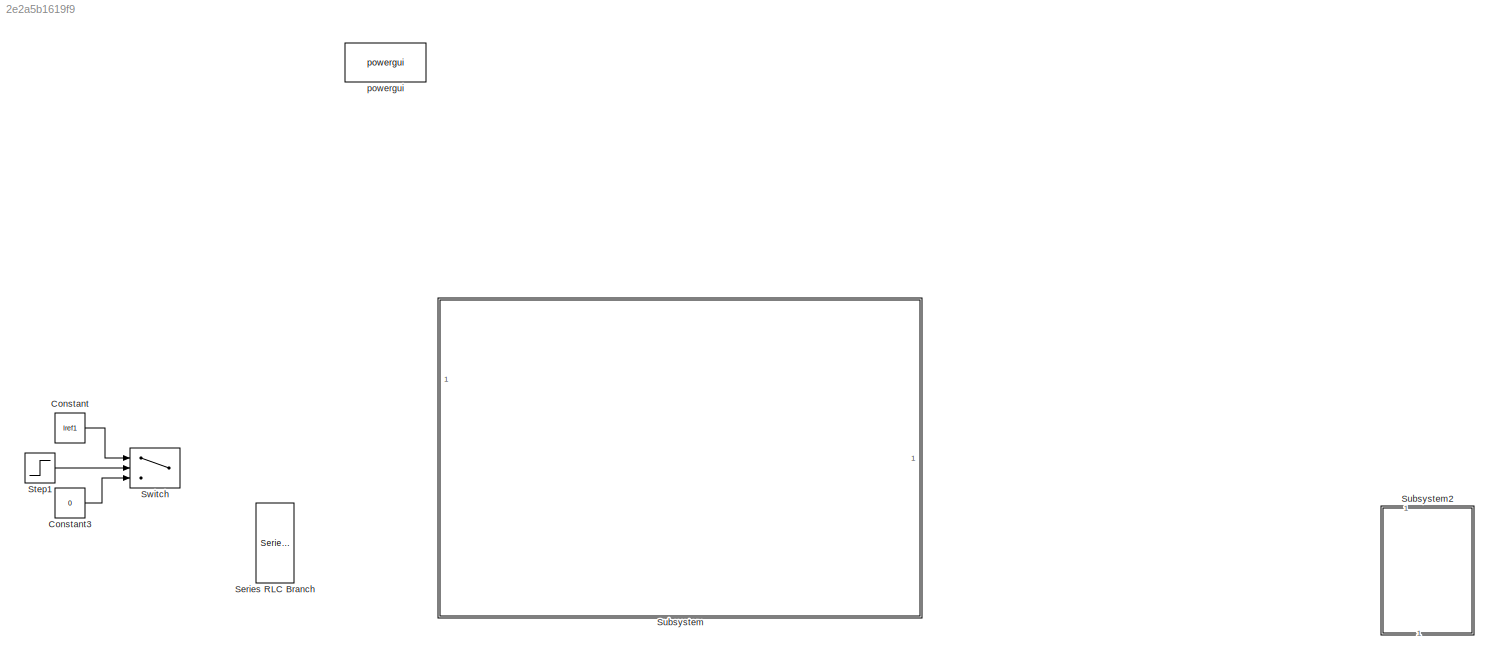
MODEL slx_2e2a5b1619f9
KIND model
CONFIG AbsTol = auto
CONFIG EnableMultiTasking = off
CONFIG FixedStep = auto
CONFIG MaxStep = auto
CONFIG MinStep = auto
CONFIG RelTol = 1e-3
CONFIG SampleTimeConstraint = Unconstrained
CONFIG SolverName = VariableStepAuto
CONFIG StartTime = 0.0
CONFIG StopTime = 40
BLOCK [Constant] Constant
  Value = Iref1
BLOCK [Constant] Constant3
  Value = 0
BLOCK [Reference] Series RLC Branch  REF=spsSeriesRLCBranchLib/Series RLC Branch
  LibrarySourceBlock = sps_lib/Passives/Series RLC Branch
  NameLocation = left
  SourceBlock = spsSeriesRLCBranchLib/Series RLC Branch
  SourceType = Series RLC Branch
BLOCK [Step] Step1
  SampleTime = 0
  Time = 21
  VectorParams1D = off
  ZeroCross = off
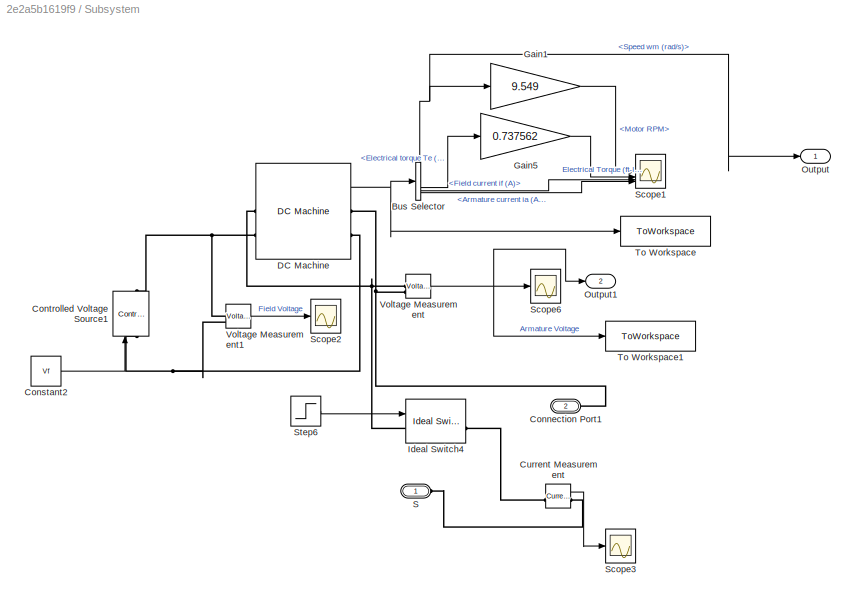
BLOCK [SubSystem] Subsystem
BLOCK [BusSelector] Subsystem/Bus Selector
  OutputSignals = Speed wm (rad/s),Electrical torque Te (n m),Field current if (A),Armature current ia (A)
BLOCK [PMIOPort] Subsystem/Connection Port1
  Port = 2
  Side = Left
BLOCK [Constant] Subsystem/Constant2
  Value = Vf
BLOCK [Reference] Subsystem/Controlled Voltage Source1  REF=spsControlledVoltageSourceLib/Controlled Voltage Source
  LibrarySourceBlock = sps_lib/Sources/Controlled Voltage Source
  NameLocation = right
  SourceBlock = spsControlledVoltageSourceLib/Controlled Voltage Source
  SourceType = Controlled Voltage Source
BLOCK [Reference] Subsystem/Current Measurement  REF=spsCurrentMeasurementLib/Current Measurement
  LibrarySourceBlock = sps_lib/Sensors and Measurements/Current Measurement
  SourceBlock = spsCurrentMeasurementLib/Current Measurement
  SourceType = Current Measurement
  UserDataPersistent = on
BLOCK [Reference] Subsystem/DC Machine  REF=spsDCMachineLib/DC Machine
  LibrarySourceBlock = sps_lib/Electrical Machines/DC Machine
  SourceBlock = spsDCMachineLib/DC Machine
  SourceType = DC machine
BLOCK [Gain] Subsystem/Gain1
  Gain = 9.549
BLOCK [Gain] Subsystem/Gain5
  Gain = 0.737562
BLOCK [Reference] Subsystem/Ideal Switch4  REF=spsIdealSwitchLib/Ideal Switch
  LibrarySourceBlock = sps_lib/Power Electronics/Ideal Switch
  SourceBlock = spsIdealSwitchLib/Ideal Switch
  SourceType = Ideal Switch
BLOCK [Outport] Subsystem/Output
BLOCK [Outport] Subsystem/Output1
  Port = 2
BLOCK [PMIOPort] Subsystem/S
  Side = Left
BLOCK [Scope] Subsystem/Scope1
  Floating = off
  NumInputPorts = 4
  ScopeSpecificationString = Simulink.scopes.TimeScopeBlockCfg('CurrentConfiguration', extmgr.ConfigurationSet(extmgr.Configuration('Core','General UI',true,'FigureColor',[0 0 0]),extmgr.Configuration('Core','Source UI',true),extmgr.Configuration('Sources','WiredSimulink',true,'DataLoggingVariableName','ScopeData1'),extmgr.Configuration('Visuals','Time Domain',true,'SerializedDisplays',{struct('MinYLimReal','-335.90145','MaxY...<+3527ch>
BLOCK [Scope] Subsystem/Scope2
  Floating = off
  NumInputPorts = 1
  ScopeSpecificationString = Simulink.scopes.TimeScopeBlockCfg('CurrentConfiguration', extmgr.ConfigurationSet(extmgr.Configuration('Core','General UI',true,'FigureColor',[0 0 0]),extmgr.Configuration('Core','Source UI',true),extmgr.Configuration('Sources','WiredSimulink',true,'SampleTime','0.01','DataLoggingVariableName','ScopeData2'),extmgr.Configuration('Visuals','Time Domain',true,'SerializedDisplays',{struct('MinYLimReal...<+1599ch>
BLOCK [Scope] Subsystem/Scope3
  Floating = off
  NumInputPorts = 1
  ScopeSpecificationString = Simulink.scopes.TimeScopeBlockCfg('CurrentConfiguration', extmgr.ConfigurationSet(extmgr.Configuration('Core','General UI',true,'FigureColor',[0 0 0]),extmgr.Configuration('Core','Source UI',true),extmgr.Configuration('Sources','WiredSimulink',true,'SampleTime','0.01','DataLoggingVariableName','ScopeData3'),extmgr.Configuration('Visuals','Time Domain',true,'SerializedDisplays',{struct('MinYLimReal...<+1630ch>
BLOCK [Scope] Subsystem/Scope6
  Floating = off
  NumInputPorts = 1
  ScopeSpecificationString = Simulink.scopes.TimeScopeBlockCfg('CurrentConfiguration', extmgr.ConfigurationSet(extmgr.Configuration('Core','General UI',true,'FigureColor',[0 0 0]),extmgr.Configuration('Core','Source UI',true),extmgr.Configuration('Sources','WiredSimulink',true,'SampleTime','0.01'),extmgr.Configuration('Visuals','Time Domain',true,'SerializedDisplays',{struct('MinYLimReal','-126.55968','MaxYLimReal','1139.0371...<+1580ch>
BLOCK [Step] Subsystem/Step6
  SampleTime = 0
  Time = 20
  VectorParams1D = off
  ZeroCross = off
BLOCK [ToWorkspace] Subsystem/To Workspace
  FixptAsFi = on
  MaxDataPoints = inf
  SampleTime = -1
  SaveFormat = Timeseries
  VariableName = simout
BLOCK [ToWorkspace] Subsystem/To Workspace1
  FixptAsFi = on
  MaxDataPoints = inf
  SampleTime = -1
  SaveFormat = Timeseries
  VariableName = ArmatureVoltage
BLOCK [Reference] Subsystem/Voltage Measurement  REF=spsVoltageMeasurementLib/Voltage Measurement
  LibrarySourceBlock = sps_lib/Sensors and Measurements/Voltage Measurement
  SourceBlock = spsVoltageMeasurementLib/Voltage Measurement
  SourceType = Voltage Measurement
  UserDataPersistent = on
BLOCK [Reference] Subsystem/Voltage Measurement1  REF=spsVoltageMeasurementLib/Voltage Measurement
  LibrarySourceBlock = sps_lib/Sensors and Measurements/Voltage Measurement
  SourceBlock = spsVoltageMeasurementLib/Voltage Measurement
  SourceType = Voltage Measurement
  UserDataPersistent = on
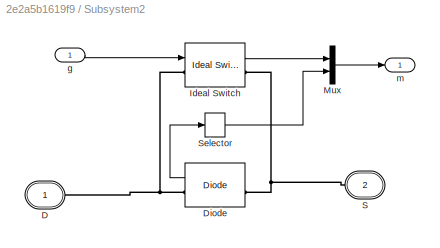
BLOCK [SubSystem] Subsystem2
  NameLocation = left
BLOCK [PMIOPort] Subsystem2/D
  Side = Left
  Tag = PMCPort
BLOCK [Reference] Subsystem2/Diode  REF=spsDiodeLib/Diode
  LibrarySourceBlock = sps_lib/Power Electronics/Diode
  SourceBlock = spsDiodeLib/Diode
  SourceType = Diode
BLOCK [Reference] Subsystem2/Ideal Switch  REF=spsIdealSwitchLib/Ideal Switch
  LibrarySourceBlock = sps_lib/Power Electronics/Ideal Switch
  SourceBlock = spsIdealSwitchLib/Ideal Switch
  SourceType = Ideal Switch
BLOCK [Mux] Subsystem2/Mux
  DisplayOption = bar
  Inputs = [2,1]
BLOCK [PMIOPort] Subsystem2/S
  Port = 2
  Side = Right
  Tag = PMCPort
BLOCK [Selector] Subsystem2/Selector
  IndexOptions = Index vector (dialog)
  Indices = 1
  InputPortWidth = 2
  OutputSizes = 1
BLOCK [Inport] Subsystem2/g
BLOCK [Outport] Subsystem2/m
  VectorParamsAs1DForOutWhenUnconnected = off
BLOCK [Switch] Switch
  Criteria = u2 > Threshold
  InputSameDT = off
  SaturateOnIntegerOverflow = off
BLOCK [Reference] powergui  REF=sps_lib/powergui
  LibrarySourceBlock = sps_lib/powergui
  Priority = 1
  SourceBlock = sps_lib/powergui
  SourceType = PSB option menu block
LINE Constant3:1 -> Switch:3
LINE Constant:1 -> Switch:1
LINE Step1:1 -> Switch:2
NET Subsystem/Bus Selector:1 -> Subsystem/Gain1:1, Subsystem/Output:1
LINE Subsystem/Bus Selector:2 -> Subsystem/Gain5:1
LINE Subsystem/Bus Selector:3 -> Subsystem/Scope1:3
LINE Subsystem/Bus Selector:4 -> Subsystem/Scope1:4
LINE Subsystem/Constant2:1 -> Subsystem/Controlled Voltage Source1:1
LINE Subsystem/Current Measurement:1 -> Subsystem/Scope3:1
NET Subsystem/DC Machine:1 -> Subsystem/Bus Selector:1, Subsystem/To Workspace:1
LINE Subsystem/Gain1:1 -> Subsystem/Scope1:1
LINE Subsystem/Gain5:1 -> Subsystem/Scope1:2
LINE Subsystem/Step6:1 -> Subsystem/Ideal Switch4:1
LINE Subsystem/Voltage Measurement1:1 -> Subsystem/Scope2:1
NET Subsystem/Voltage Measurement:1 -> Subsystem/Output1:1, Subsystem/Scope6:1, Subsystem/To Workspace1:1
LINE Subsystem2/Diode:1 -> Subsystem2/Selector:1
LINE Subsystem2/Ideal Switch:1 -> Subsystem2/Mux:1
LINE Subsystem2/Mux:1 -> Subsystem2/m:1
LINE Subsystem2/Selector:1 -> Subsystem2/Mux:2
LINE Subsystem2/g:1 -> Subsystem2/Ideal Switch:1
PNET net1: Subsystem/Connection Port1:RConn1 -- Subsystem/DC Machine:RConn1 -- Subsystem/Voltage Measurement:LConn2
PNET net2: Subsystem/Controlled Voltage Source1:LConn1 -- Subsystem/DC Machine:RConn2 -- Subsystem/Voltage Measurement1:LConn2
PNET net3: Subsystem/Controlled Voltage Source1:RConn1 -- Subsystem/DC Machine:LConn2 -- Subsystem/Voltage Measurement1:LConn1
PLINE Subsystem/Current Measurement:LConn1 -- Subsystem/Ideal Switch4:RConn1
PLINE Subsystem/Current Measurement:RConn1 -- Subsystem/S:RConn1
PNET net4: Subsystem/DC Machine:LConn1 -- Subsystem/Ideal Switch4:LConn1 -- Subsystem/Voltage Measurement:LConn1
PNET net5: Subsystem2/D:RConn1 -- Subsystem2/Diode:RConn1 -- Subsystem2/Ideal Switch:LConn1
PNET net6: Subsystem2/Diode:LConn1 -- Subsystem2/Ideal Switch:RConn1 -- Subsystem2/S:RConn1
note: NET lines group one-source signal fan-out (src -> all destinations, sorted); 1:1 wires keep LINE; PNET lines group multi-terminal physical nets as a canonical sorted terminal list (undirected conserving connections); 2-terminal nets keep the pairwise PLINE form
